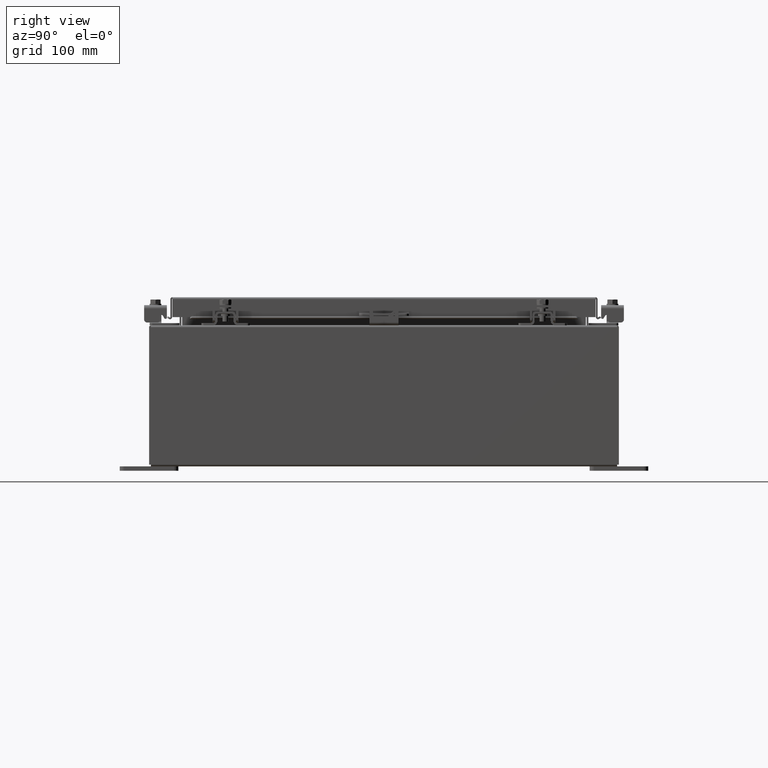
[diagram: clean part render]
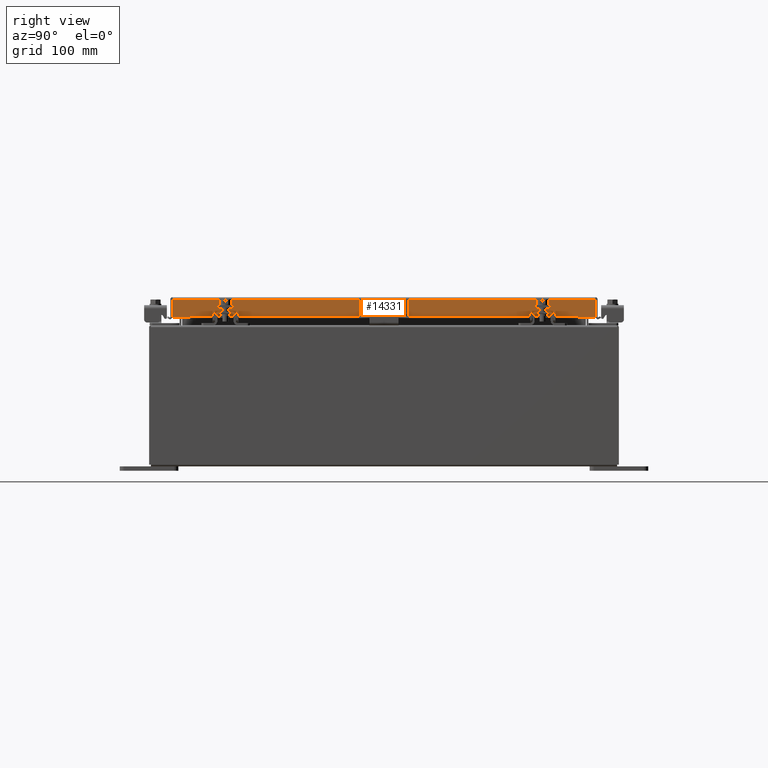
[diagram: same view with one face highlighted and labeled with its STEP entity id]
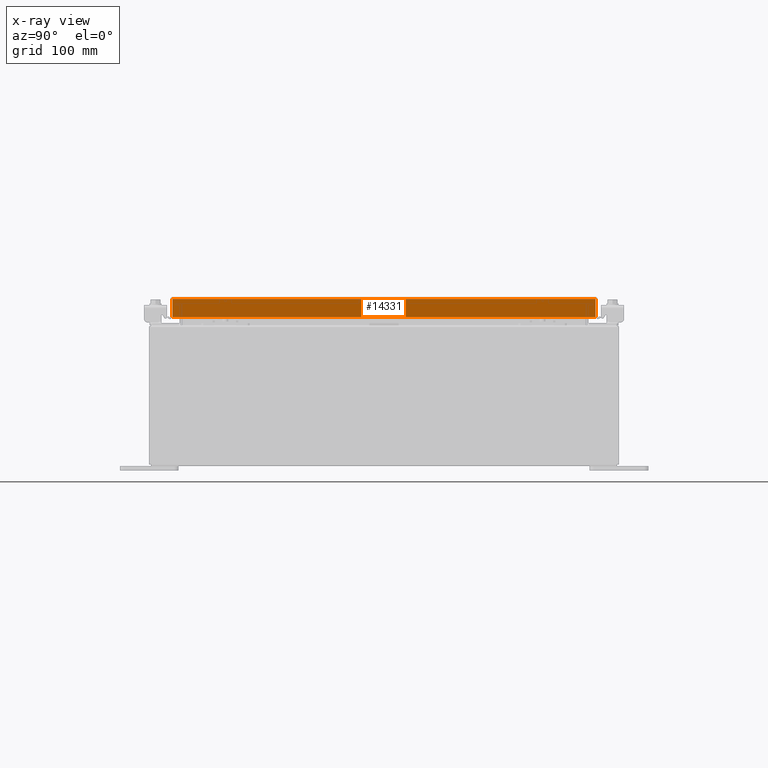
[diagram: x-ray of the same camera — body ghosted, the highlighted face saturated]
A machine part, right view. The second image highlights one B-rep face of the part: STEP entity #14331.
The next image is the same camera in x-ray: the body ghosted, the highlighted face saturated — about 0% of this face is hidden behind the body in this view.
In plain terms, the highlighted planar face has unit normal (1, 0, 0).
Its self-contained STEP definition (entity closure, byte-faithful):
#17 = ORIENTED_EDGE ( 'NONE', *, *, #21376, .F. ) ;
#322 = DIRECTION ( 'NONE',  ( -2.818880942772360100E-015, -6.982962677686267500E-015, 1.000000000000000000 ) ) ;
#654 = LINE ( 'NONE', #23882, #17376 ) ;
#1147 = VERTEX_POINT ( 'NONE', #15482 ) ;
#1396 = DIRECTION ( 'NONE',  ( 1.000000000000000000, 0.0000000000000000000, 2.818880942772360100E-015 ) ) ;
#2011 = AXIS2_PLACEMENT_3D ( 'NONE', #28536, #1396, #17279 ) ;
#2895 = CARTESIAN_POINT ( 'NONE',  ( 9.077999999999999400, -9.005157864376268900, -0.08770000000000115200 ) ) ;
#3156 = ORIENTED_EDGE ( 'NONE', *, *, #10117, .F. ) ;
#3586 = CARTESIAN_POINT ( 'NONE',  ( 9.077999999999999400, 8.255157864376270600, -0.8500000000000013100 ) ) ;
#3752 = CARTESIAN_POINT ( 'NONE',  ( 9.077999999999999400, 5.269036046721535500E-018, -0.08770000000000061100 ) ) ;
#3872 = EDGE_CURVE ( 'NONE', #13217, #6815, #654, .T. ) ;
#5261 = ORIENTED_EDGE ( 'NONE', *, *, #27312, .T. ) ;
#5411 = CARTESIAN_POINT ( 'NONE',  ( 9.077999999999999400, 9.005157864376268900, -0.08770000000000061100 ) ) ;
#5901 = VERTEX_POINT ( 'NONE', #29498 ) ;
#6124 = VECTOR ( 'NONE', #322, 39.37007874015748100 ) ;
#6461 = EDGE_LOOP ( 'NONE', ( #27338, #28206, #3156, #17, #5261, #10868 ) ) ;
#6517 = LINE ( 'NONE', #16487, #25342 ) ;
#6815 = VERTEX_POINT ( 'NONE', #2895 ) ;
#8198 = VECTOR ( 'NONE', #24297, 39.37007874015748100 ) ;
#10117 = EDGE_CURVE ( 'NONE', #28715, #5901, #20131, .T. ) ;
#10622 = DIRECTION ( 'NONE',  ( 1.693590113897317100E-031, -1.000000000000000000, -6.008022858289562200E-017 ) ) ;
#10714 = FACE_OUTER_BOUND ( 'NONE', #6461, .T. ) ;
#10868 = ORIENTED_EDGE ( 'NONE', *, *, #17306, .T. ) ;
#11172 = VERTEX_POINT ( 'NONE', #5411 ) ;
#12174 = EDGE_CURVE ( 'NONE', #5901, #13217, #6517, .T. ) ;
#13217 = VERTEX_POINT ( 'NONE', #15632 ) ;
#14331 = ADVANCED_FACE ( 'NONE', ( #10714 ), #19491, .T. ) ;
#15152 = LINE ( 'NONE', #3752, #25798 ) ;
#15482 = CARTESIAN_POINT ( 'NONE',  ( 9.078000000000001200, 9.005157864376274200, -0.8499999999999996400 ) ) ;
#15632 = CARTESIAN_POINT ( 'NONE',  ( 9.078000000000001200, -9.005157864376263500, -0.8499999999999996400 ) ) ;
#16487 = CARTESIAN_POINT ( 'NONE',  ( 9.078000000000001200, -9.093999999999999400, -0.8499999999999996400 ) ) ;
#17279 = DIRECTION ( 'NONE',  ( 2.818880942772360100E-015, 0.0000000000000000000, -1.000000000000000000 ) ) ;
#17306 = EDGE_CURVE ( 'NONE', #11172, #6815, #15152, .T. ) ;
#17376 = VECTOR ( 'NONE', #18435, 39.37007874015748100 ) ;
#18206 = LINE ( 'NONE', #22989, #6124 ) ;
#18435 = DIRECTION ( 'NONE',  ( -2.818880942772360100E-015, -6.982962677686267500E-015, 1.000000000000000000 ) ) ;
#19491 = PLANE ( 'NONE',  #2011 ) ;
#20131 = LINE ( 'NONE', #3586, #25459 ) ;
#21002 = LINE ( 'NONE', #22040, #8198 ) ;
#21376 = EDGE_CURVE ( 'NONE', #1147, #28715, #21002, .T. ) ;
#22040 = CARTESIAN_POINT ( 'NONE',  ( 9.078000000000001200, -9.093999999999999400, -0.8499999999999996400 ) ) ;
#22989 = CARTESIAN_POINT ( 'NONE',  ( 9.077999999999999400, 9.005157864376267100, 8.873329612811152000E-014 ) ) ;
#23882 = CARTESIAN_POINT ( 'NONE',  ( 9.077999999999999400, -9.005157864376268900, -0.07469999999999978000 ) ) ;
#24297 = DIRECTION ( 'NONE',  ( 0.0000000000000000000, -1.000000000000000000, 0.0000000000000000000 ) ) ;
#25342 = VECTOR ( 'NONE', #27349, 39.37007874015748100 ) ;
#25459 = VECTOR ( 'NONE', #28531, 39.37007874015748100 ) ;
#25575 = CARTESIAN_POINT ( 'NONE',  ( 9.077999999999999400, 8.255157864376270600, -0.8500000000000013100 ) ) ;
#25798 = VECTOR ( 'NONE', #10622, 39.37007874015748100 ) ;
#27312 = EDGE_CURVE ( 'NONE', #1147, #11172, #18206, .T. ) ;
#27338 = ORIENTED_EDGE ( 'NONE', *, *, #3872, .F. ) ;
#27349 = DIRECTION ( 'NONE',  ( 0.0000000000000000000, -1.000000000000000000, 0.0000000000000000000 ) ) ;
#28206 = ORIENTED_EDGE ( 'NONE', *, *, #12174, .F. ) ;
#28531 = DIRECTION ( 'NONE',  ( 0.0000000000000000000, -1.000000000000000000, 0.0000000000000000000 ) ) ;
#28536 = CARTESIAN_POINT ( 'NONE',  ( 9.077999999999999400, 0.0000000000000000000, 2.585061485449906600E-014 ) ) ;
#28715 = VERTEX_POINT ( 'NONE', #25575 ) ;
#29498 = CARTESIAN_POINT ( 'NONE',  ( 9.077999999999999400, -8.255157864376260000, -0.8500000000000013100 ) ) ;